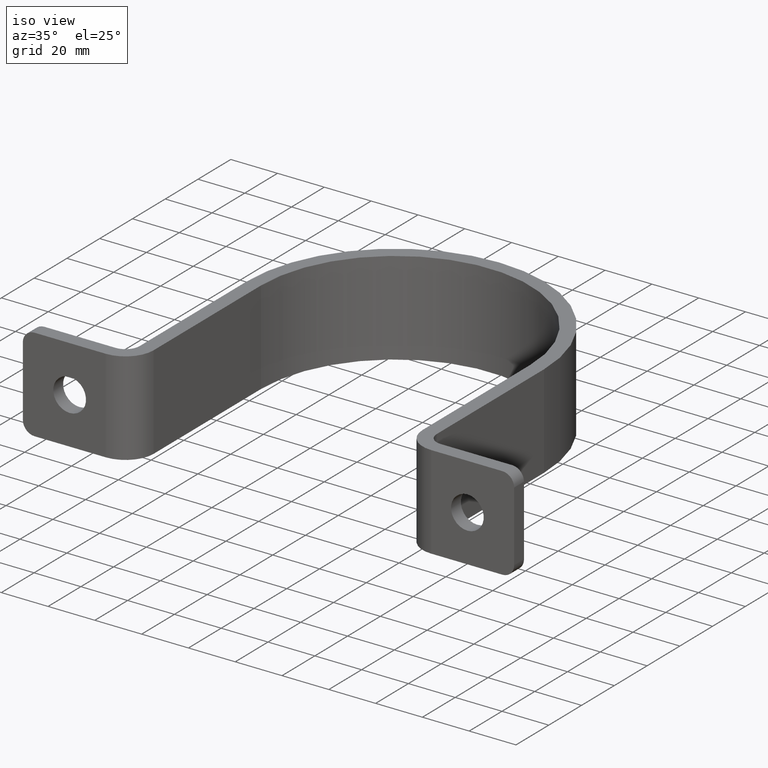
[diagram: clean part render]
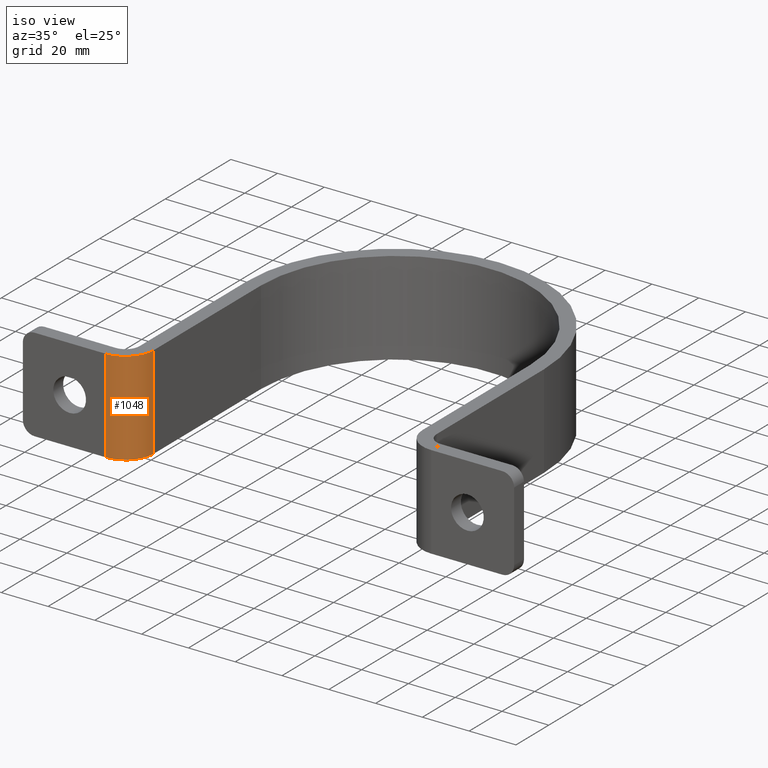
[diagram: same view with one face highlighted and labeled with its STEP entity id]
A machine part, iso view. The second image highlights one B-rep face of the part: STEP entity #1048.
In plain terms, the highlighted cylindrical surface (edge-blend (fillet) strip) has radius 12 mm, axis along (-0, -0, -1).
Its self-contained STEP definition (entity closure, byte-faithful):
#2 = DIRECTION ( 'NONE',  ( -1.000000000000000000, 0.000000000000000000, 0.000000000000000000 ) ) ;
#4 = DIRECTION ( 'NONE',  ( -0.000000000000000000, -0.000000000000000000, 1.000000000000000000 ) ) ;
#42 = CYLINDRICAL_SURFACE ( 'NONE', #541, 11.99999999999999645 ) ;
#53 = ORIENTED_EDGE ( 'NONE', *, *, #742, .T. ) ;
#81 = CIRCLE ( 'NONE', #686, 11.99999999999999645 ) ;
#103 = VECTOR ( 'NONE', #1055, 1000.000000000000000 ) ;
#104 = VERTEX_POINT ( 'NONE', #967 ) ;
#112 = LINE ( 'NONE', #556, #103 ) ;
#216 = VERTEX_POINT ( 'NONE', #497 ) ;
#275 = CARTESIAN_POINT ( 'NONE',  ( -69.50000000000000000, 5.999999999999974243, 20.00000000000000000 ) ) ;
#312 = EDGE_CURVE ( 'NONE', #401, #216, #746, .T. ) ;
#362 = CARTESIAN_POINT ( 'NONE',  ( -69.50000000000000000, 17.99999999999997513, -20.00000000000000000 ) ) ;
#364 = ORIENTED_EDGE ( 'NONE', *, *, #312, .F. ) ;
#401 = VERTEX_POINT ( 'NONE', #910 ) ;
#414 = AXIS2_PLACEMENT_3D ( 'NONE', #845, #622, #2 ) ;
#440 = EDGE_LOOP ( 'NONE', ( #53, #560, #364, #829 ) ) ;
#455 = LINE ( 'NONE', #275, #615 ) ;
#478 = CARTESIAN_POINT ( 'NONE',  ( -69.50000000000000000, 17.99999999999997513, 20.00000000000000000 ) ) ;
#497 = CARTESIAN_POINT ( 'NONE',  ( -57.50000000000000711, 17.99999999999997513, 20.00000000000000000 ) ) ;
#541 = AXIS2_PLACEMENT_3D ( 'NONE', #478, #981, #674 ) ;
#556 = CARTESIAN_POINT ( 'NONE',  ( -57.50000000000000711, 17.99999999999997513, 20.00000000000000000 ) ) ;
#560 = ORIENTED_EDGE ( 'NONE', *, *, #903, .F. ) ;
#574 = FACE_OUTER_BOUND ( 'NONE', #440, .T. ) ;
#615 = VECTOR ( 'NONE', #783, 1000.000000000000000 ) ;
#622 = DIRECTION ( 'NONE',  ( -0.000000000000000000, -0.000000000000000000, 1.000000000000000000 ) ) ;
#674 = DIRECTION ( 'NONE',  ( -1.000000000000000000, 0.000000000000000000, 0.000000000000000000 ) ) ;
#686 = AXIS2_PLACEMENT_3D ( 'NONE', #362, #4, #856 ) ;
#704 = CARTESIAN_POINT ( 'NONE',  ( -57.50000000000000711, 17.99999999999997513, -20.00000000000000000 ) ) ;
#742 = EDGE_CURVE ( 'NONE', #104, #808, #81, .T. ) ;
#746 = CIRCLE ( 'NONE', #414, 11.99999999999999645 ) ;
#783 = DIRECTION ( 'NONE',  ( -0.000000000000000000, -0.000000000000000000, -1.000000000000000000 ) ) ;
#808 = VERTEX_POINT ( 'NONE', #704 ) ;
#829 = ORIENTED_EDGE ( 'NONE', *, *, #835, .T. ) ;
#835 = EDGE_CURVE ( 'NONE', #401, #104, #455, .T. ) ;
#845 = CARTESIAN_POINT ( 'NONE',  ( -69.50000000000000000, 17.99999999999997513, 20.00000000000000000 ) ) ;
#856 = DIRECTION ( 'NONE',  ( -1.000000000000000000, 0.000000000000000000, 0.000000000000000000 ) ) ;
#903 = EDGE_CURVE ( 'NONE', #216, #808, #112, .T. ) ;
#910 = CARTESIAN_POINT ( 'NONE',  ( -69.50000000000000000, 5.999999999999974243, 20.00000000000000000 ) ) ;
#967 = CARTESIAN_POINT ( 'NONE',  ( -69.50000000000000000, 5.999999999999974243, -20.00000000000000000 ) ) ;
#981 = DIRECTION ( 'NONE',  ( -0.000000000000000000, -0.000000000000000000, -1.000000000000000000 ) ) ;
#1048 = ADVANCED_FACE ( 'NONE', ( #574 ), #42, .T. ) ;
#1055 = DIRECTION ( 'NONE',  ( -0.000000000000000000, -0.000000000000000000, -1.000000000000000000 ) ) ;